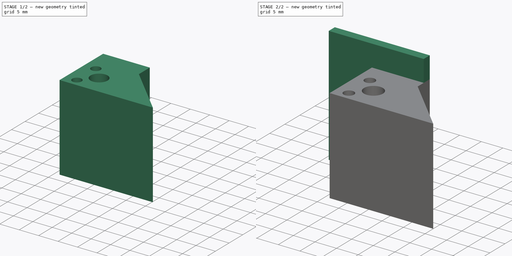
[diagram: build sequence overview — one tinted view per stage of 2, left to right]
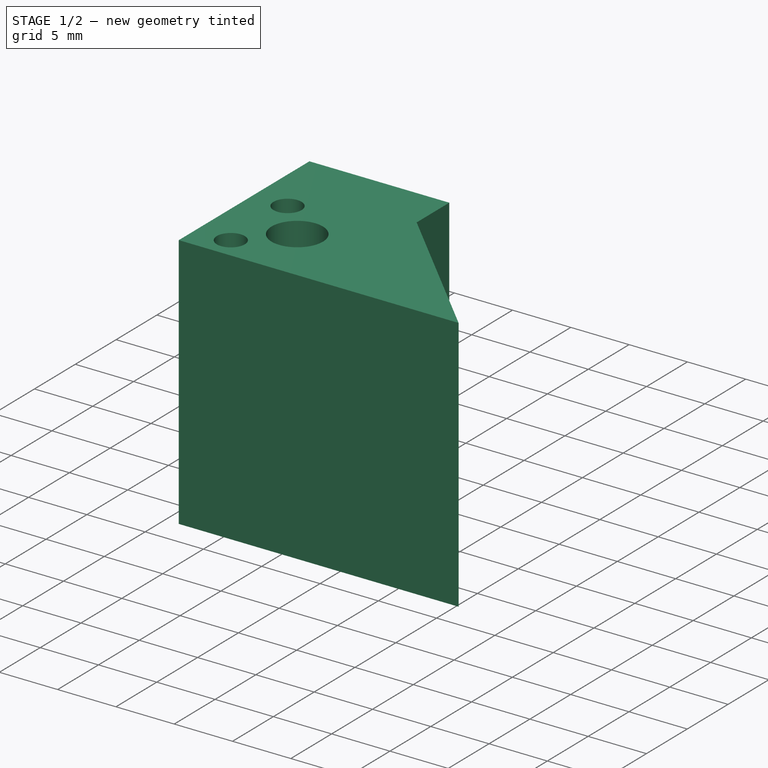
[diagram: stage 1 of 2 — iso view after this stage's code; geometry added in this stage tinted green]
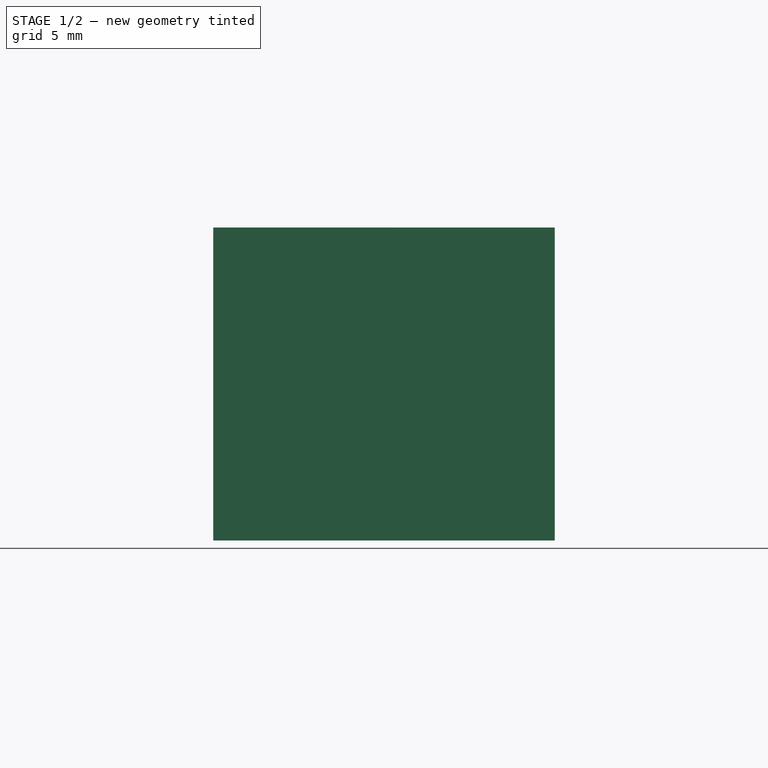
[diagram: stage 1 of 2 — front view after this stage's code; geometry added in this stage tinted green]
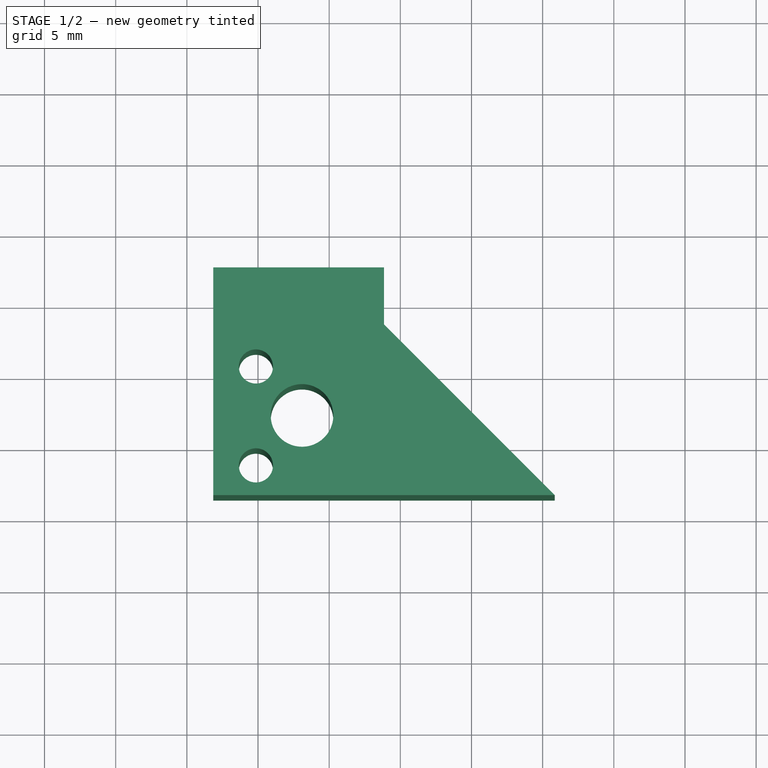
[diagram: stage 1 of 2 — top view after this stage's code; geometry added in this stage tinted green]
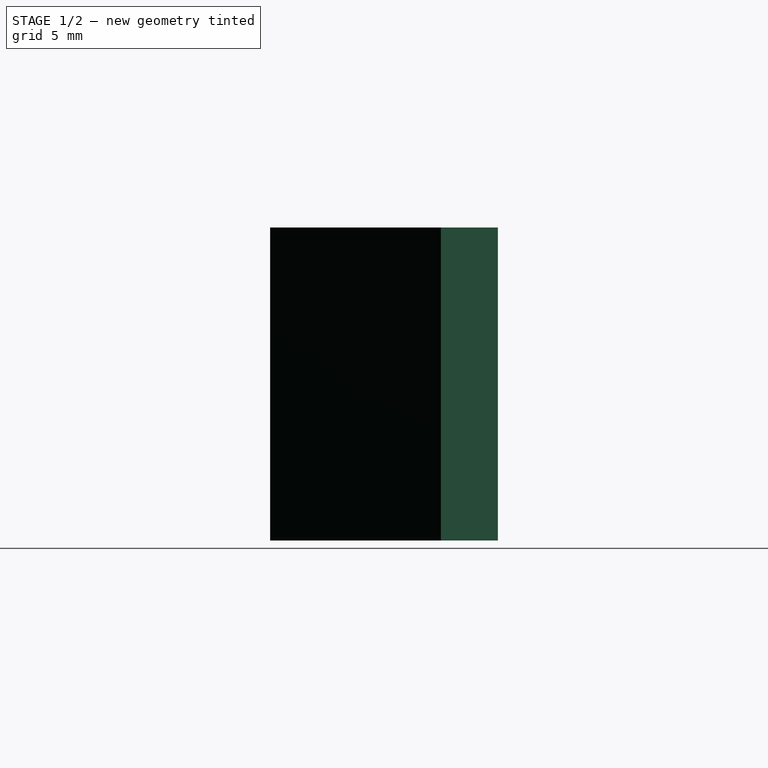
[diagram: stage 1 of 2 — right view after this stage's code; geometry added in this stage tinted green]
FCSTD DOCUMENT  (FreeCAD 0.18.4R)
Label: support_for_grag_chain_on_fixed_head
License: All rights reserved
LicenseURL: http://en.wikipedia.org/wiki/All_rights_reserved
objects: Sketcher::SketchObject×4, PartDesign::Pad×4, PartDesign::Body×1
note: 13 computed .brp shape members not serialized (recipe doc carries the construction recipe); baked Part::Feature solids carry a one-line shape summary decoded from their .brp

FEATURE [Sketcher::SketchObject] Sketch
  MapMode = 5
  Support = -> [XY_Plane]
  sketch-geometry (7):
    g0: LineSegment StartX=3.85287 StartY=8.47822 StartZ=0 EndX=-8.14713 EndY=8.47822 EndZ=0
    g1: LineSegment StartX=-8.14713 StartY=8.47822 StartZ=0 EndX=-8.14713 EndY=-3.52178 EndZ=0
    g2: LineSegment StartX=-8.14713 StartY=-3.52178 StartZ=0 EndX=15.8529 EndY=-3.52178 EndZ=0
    g3: LineSegment StartX=3.85287 StartY=8.47822 StartZ=0 EndX=15.8529 EndY=-3.52178 EndZ=0
    g4: Circle CenterX=-5.14713 CenterY=5.51822 CenterZ=0 NormalX=0 NormalY=0 NormalZ=1 AngleXU=0 Radius=1.2
    g5: Circle CenterX=-5.14713 CenterY=-1.43178 CenterZ=0 NormalX=0 NormalY=0 NormalZ=1 AngleXU=0 Radius=1.2
    g6: Circle CenterX=-1.90713 CenterY=2.07822 CenterZ=0 NormalX=0 NormalY=0 NormalZ=1 AngleXU=0 Radius=2.2
  constraints (19):
    c: Horizontal(g0)
    c: Coincident(g1,g0)
    c: Vertical(g1)
    c: Coincident(g2,g1)
    c: Horizontal(g2)
    c: Coincident(g3,g0)
    c: Angle(g0,g3) = 2.35619
    c: Coincident(g3,g2)
    c: DistanceY(g1,g1) = 12
    c: DistanceX(g0,g0) = 12
    c: Radius(g4) = 1.2
    c: Radius(g5) = 1.2
    c: Radius(g6) = 2.2
    c: Distance(g5,g1) = 3
    c: Distance(g4,g1) = 3
    c: Distance(g5,g4) = 6.95
    c: Distance(g6,g1) = 6.24
    c: Distance(g6,g0) = 6.4
    c: Distance(g4,g0) = 2.96
FEATURE [PartDesign::Pad] Pad
  Length = 22
  Length2 = 100
  Profile = -> Sketch
  Type = 0
FEATURE [Sketcher::SketchObject] Sketch001
  ExternalGeometry = -> [Pad]
  MapMode = 5
  Placement = pos=(0,8.47822,0) rot=(0,0.707107,0.707107;3.14159rad)
  Support = -> [Pad]
  sketch-geometry (4):
    g0: LineSegment StartX=-3.85287 StartY=22 StartZ=0 EndX=8.14713 EndY=22 EndZ=0
    g1: LineSegment StartX=8.14713 StartY=22 StartZ=0 EndX=8.14713 EndY=0 EndZ=0
    g2: LineSegment StartX=8.14713 StartY=0 StartZ=0 EndX=-3.85287 EndY=0 EndZ=0
    g3: LineSegment StartX=-3.85287 StartY=0 StartZ=0 EndX=-3.85287 EndY=22 EndZ=0
  constraints (10):
    c: Coincident(g0,g1)
    c: Coincident(g1,g2)
    c: Coincident(g2,g3)
    c: Coincident(g3,g0)
    c: Horizontal(g0)
    c: Horizontal(g2)
    c: Vertical(g1)
    c: Vertical(g3)
    c: Coincident(g0,g-4)
    c: Coincident(g1,g-6)
FEATURE [PartDesign::Pad] Pad001
  BaseFeature = -> Pad
  Length = 4
  Length2 = 100
  Profile = -> Sketch001
  Type = 0
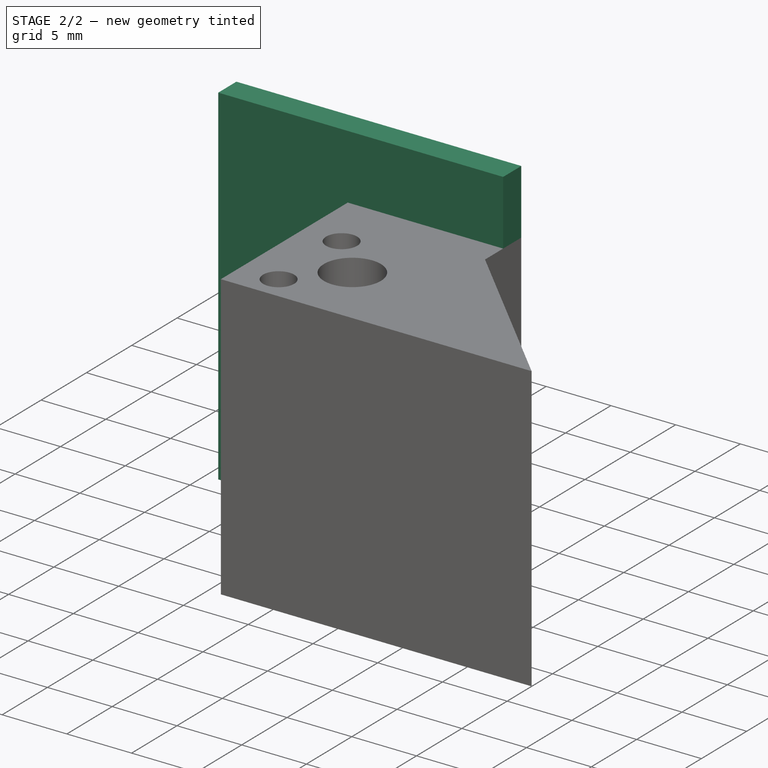
[diagram: stage 2 of 2 — iso view after this stage's code; geometry added in this stage tinted green]
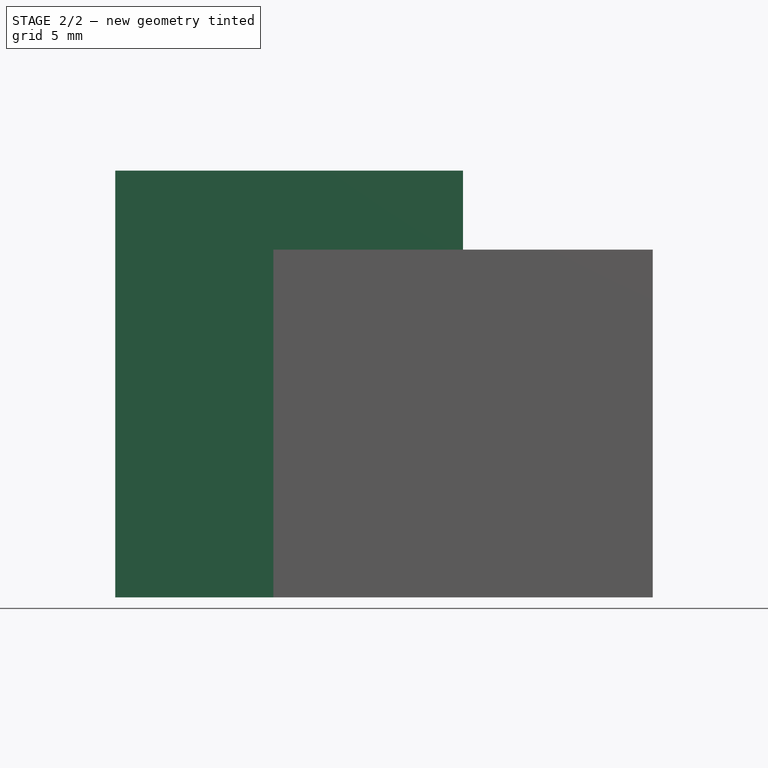
[diagram: stage 2 of 2 — front view after this stage's code; geometry added in this stage tinted green]
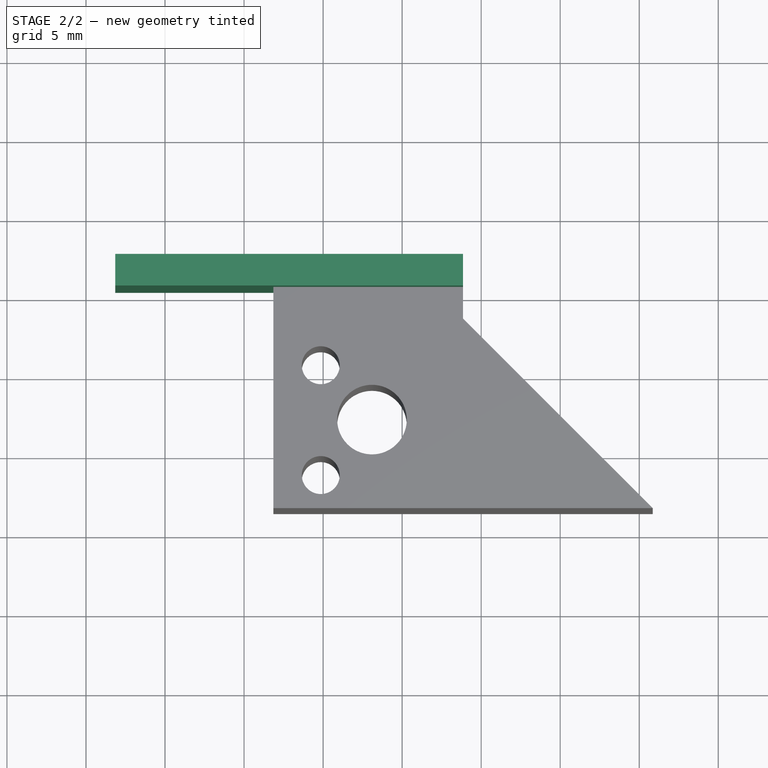
[diagram: stage 2 of 2 — top view after this stage's code; geometry added in this stage tinted green]
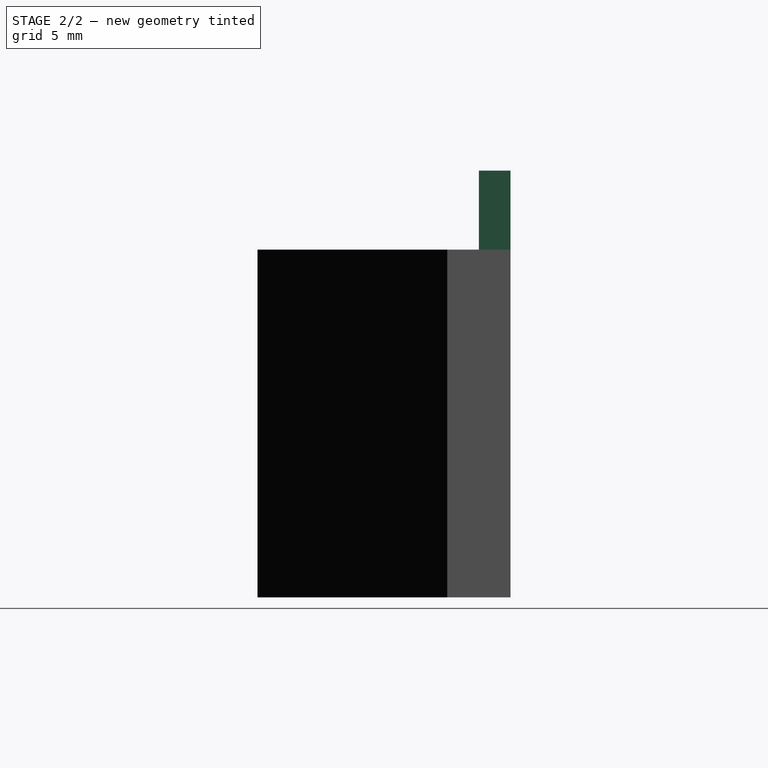
[diagram: stage 2 of 2 — right view after this stage's code; geometry added in this stage tinted green]
FEATURE [Sketcher::SketchObject] Sketch002
  ExternalGeometry = -> [Pad001]
  MapMode = 5
  Placement = pos=(-8.14713,0,0) rot=(0.57735,-0.57735,-0.57735;2.0944rad)
  Support = -> [Pad001]
  sketch-geometry (4):
    g0: LineSegment StartX=-12.4782 StartY=22 StartZ=0 EndX=-10.4782 EndY=22 EndZ=0
    g1: LineSegment StartX=-10.4782 StartY=22 StartZ=0 EndX=-10.4782 EndY=0 EndZ=0
    g2: LineSegment StartX=-10.4782 StartY=0 StartZ=0 EndX=-12.4782 EndY=0 EndZ=0
    g3: LineSegment StartX=-12.4782 StartY=0 StartZ=0 EndX=-12.4782 EndY=22 EndZ=0
  constraints (11):
    c: Coincident(g0,g1)
    c: Coincident(g1,g2)
    c: Coincident(g2,g3)
    c: Coincident(g3,g0)
    c: Horizontal(g0)
    c: Horizontal(g2)
    c: Vertical(g1)
    c: Vertical(g3)
    c: Coincident(g0,g-4)
    c: PointOnObject(g1,g-1)
    c: DistanceX(g0,g0) = 2
FEATURE [PartDesign::Pad] Pad002
  BaseFeature = -> Pad001
  Length = 10
  Length2 = 100
  Profile = -> Sketch002
  Type = 0
FEATURE [Sketcher::SketchObject] Sketch003
  ExternalGeometry = -> [Pad002]
  MapMode = 5
  Placement = pos=(0,4.9e-15,22) rot=(0,0,1;0rad)
  Support = -> [Pad002]
  sketch-geometry (4):
    g0: LineSegment StartX=-18.1471 StartY=10.4782 StartZ=0 EndX=3.85287 EndY=10.4782 EndZ=0
    g1: LineSegment StartX=3.85287 StartY=10.4782 StartZ=0 EndX=3.85287 EndY=12.4782 EndZ=0
    g2: LineSegment StartX=3.85287 StartY=12.4782 StartZ=0 EndX=-18.1471 EndY=12.4782 EndZ=0
    g3: LineSegment StartX=-18.1471 StartY=12.4782 StartZ=0 EndX=-18.1471 EndY=10.4782 EndZ=0
  constraints (10):
    c: Coincident(g0,g1)
    c: Coincident(g1,g2)
    c: Coincident(g2,g3)
    c: Coincident(g3,g0)
    c: Horizontal(g0)
    c: Horizontal(g2)
    c: Vertical(g1)
    c: Vertical(g3)
    c: Coincident(g0,g-5)
    c: Coincident(g1,g-4)
FEATURE [PartDesign::Pad] Pad003
  BaseFeature = -> Pad002
  Length = 5
  Length2 = 100
  Profile = -> Sketch003
  Type = 0
FEATURE [PartDesign::Body] Body
  Group = -> [Sketch,Pad,Sketch001,Pad001,Sketch002,Pad002,Sketch003,Pad003]
  Origin = -> Origin
  Tip = -> Pad003
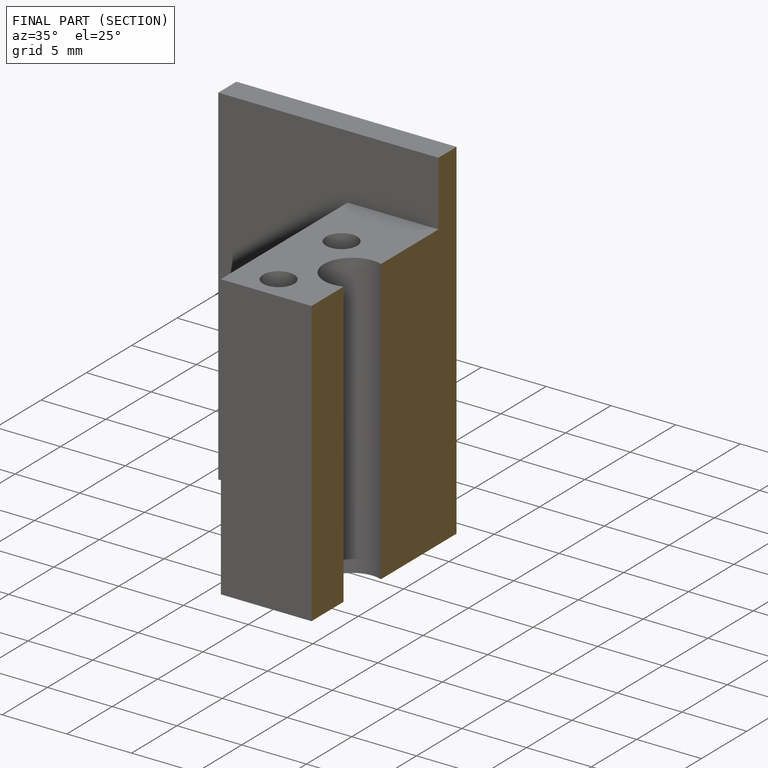
[diagram: finished part — half-section view (interior)]
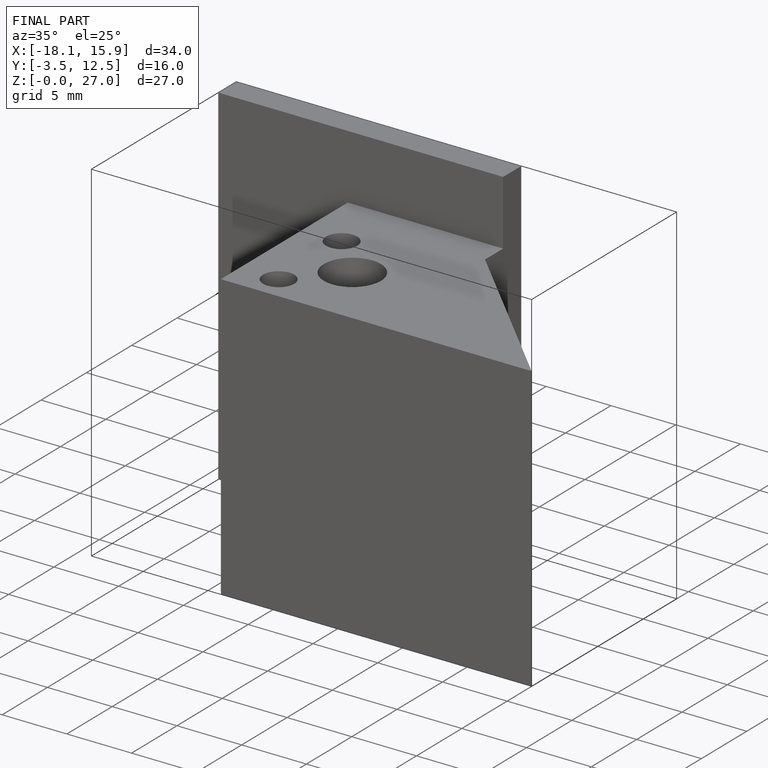
[diagram: finished part — iso view with bounding-box wireframe]
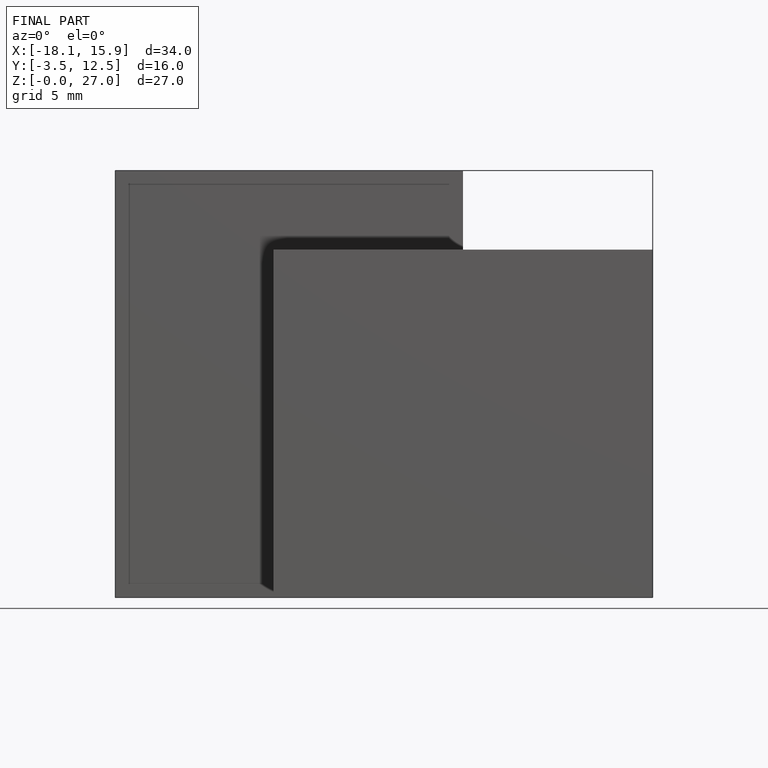
[diagram: finished part — front view with bounding-box wireframe]
